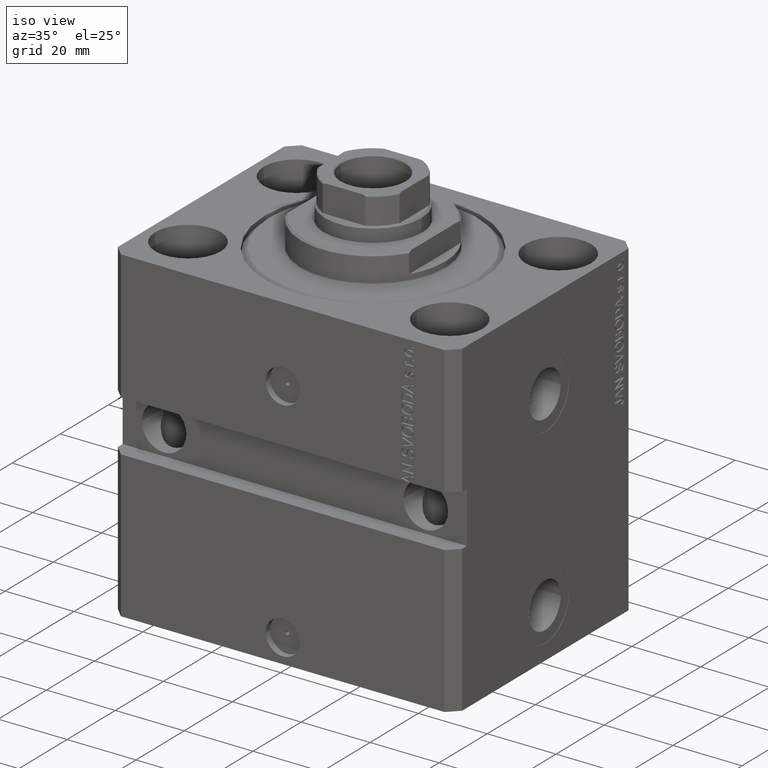
[diagram: clean part render]
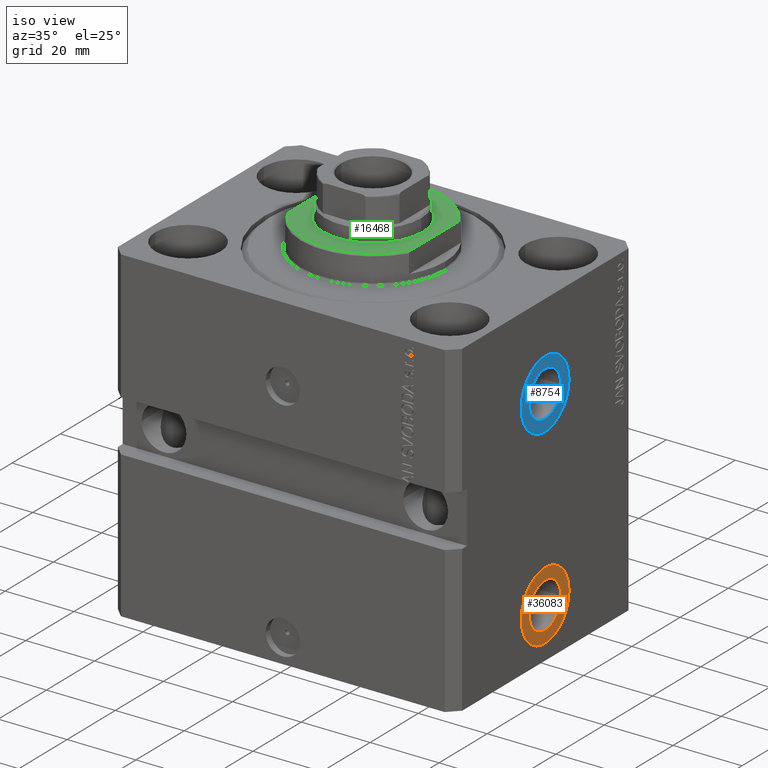
[diagram: same view with three faces highlighted in distinct colors, each labeled with its STEP entity id]
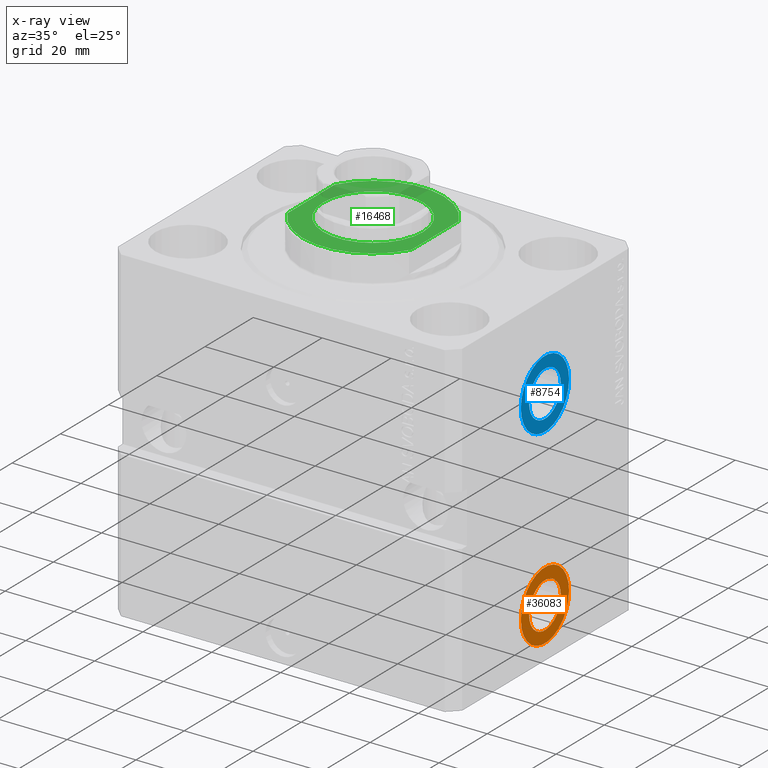
[diagram: x-ray of the same camera — body ghosted, the three highlighted faces saturated]
A machine part, iso view with three faces highlighted in distinct colors.
The next image is the same camera in x-ray (body ghosted, the three faces saturated) — at least one of them is partly hidden behind the body in this view.
Their STEP definitions:

[orange] entity #36083 — the highlighted planar face has unit normal (1, -0, 0).
#380 = CARTESIAN_POINT ( 'NONE',  ( 49.90000000000034674, 6.579999999999617266, -80.50000000000000000 ) ) ;
#831 = DIRECTION ( 'NONE',  ( 1.370906090437600963E-14, 1.000000000000000000, 0.000000000000000000 ) ) ;
#3989 = CIRCLE ( 'NONE', #30974, 6.579999999999987637 ) ;
#4279 = VERTEX_POINT ( 'NONE', #380 ) ;
#4634 = DIRECTION ( 'NONE',  ( 1.370906090437600963E-14, 1.000000000000000000, 0.000000000000000000 ) ) ;
#5069 = CARTESIAN_POINT ( 'NONE',  ( 49.90000000000038938, 9.999999999999623412, -80.50000000000000000 ) ) ;
#5506 = CIRCLE ( 'NONE', #10926, 9.999999999999994671 ) ;
#5557 = FACE_OUTER_BOUND ( 'NONE', #45470, .T. ) ;
#6057 = EDGE_CURVE ( 'NONE', #42734, #4279, #3989, .T. ) ;
#7972 = VERTEX_POINT ( 'NONE', #9671 ) ;
#8620 = EDGE_LOOP ( 'NONE', ( #37502, #46921 ) ) ;
#9671 = CARTESIAN_POINT ( 'NONE',  ( 49.90000000000012648, -10.00000000000036593, -80.50000000000000000 ) ) ;
#10926 = AXIS2_PLACEMENT_3D ( 'NONE', #35676, #31582, #28206 ) ;
#12236 = CIRCLE ( 'NONE', #33053, 6.579999999999987637 ) ;
#12384 = CIRCLE ( 'NONE', #45502, 9.999999999999994671 ) ;
#13167 = CARTESIAN_POINT ( 'NONE',  ( 49.90000000000025437, -3.707512124632282308E-13, -80.50000000000000000 ) ) ;
#17111 = PLANE ( 'NONE',  #40040 ) ;
#17595 = DIRECTION ( 'NONE',  ( 1.334402673828349134E-14, 1.000000000000000000, 0.000000000000000000 ) ) ;
#20266 = DIRECTION ( 'NONE',  ( 1.000000000000000000, -1.334402673828349134E-14, 0.000000000000000000 ) ) ;
#20693 = ORIENTED_EDGE ( 'NONE', *, *, #44130, .T. ) ;
#24130 = CARTESIAN_POINT ( 'NONE',  ( 49.90000000000025437, -3.707512124632282308E-13, -80.50000000000000000 ) ) ;
#28206 = DIRECTION ( 'NONE',  ( 1.318389841742374023E-14, 1.000000000000000000, 0.000000000000000000 ) ) ;
#28220 = FACE_BOUND ( 'NONE', #8620, .T. ) ;
#29285 = EDGE_CURVE ( 'NONE', #4279, #42734, #12236, .T. ) ;
#29778 = DIRECTION ( 'NONE',  ( 1.000000000000000000, -1.334402673828349134E-14, 0.000000000000000000 ) ) ;
#30974 = AXIS2_PLACEMENT_3D ( 'NONE', #41295, #37678, #4634 ) ;
#31582 = DIRECTION ( 'NONE',  ( 1.000000000000000000, -1.334402673828349134E-14, 0.000000000000000000 ) ) ;
#32782 = VERTEX_POINT ( 'NONE', #5069 ) ;
#33053 = AXIS2_PLACEMENT_3D ( 'NONE', #37006, #29778, #831 ) ;
#35676 = CARTESIAN_POINT ( 'NONE',  ( 49.90000000000025437, -3.707512124632282308E-13, -80.50000000000000000 ) ) ;
#36083 = ADVANCED_FACE ( 'NONE', ( #28220, #5557 ), #17111, .T. ) ;
#36131 = CARTESIAN_POINT ( 'NONE',  ( 49.90000000000016911, -6.580000000000357119, -80.50000000000000000 ) ) ;
#37006 = CARTESIAN_POINT ( 'NONE',  ( 49.90000000000025437, -3.707512124632282308E-13, -80.50000000000000000 ) ) ;
#37502 = ORIENTED_EDGE ( 'NONE', *, *, #29285, .F. ) ;
#37678 = DIRECTION ( 'NONE',  ( 1.000000000000000000, -1.334402673828349134E-14, 0.000000000000000000 ) ) ;
#38744 = DIRECTION ( 'NONE',  ( 1.000000000000000000, -1.334402673828349134E-14, 0.000000000000000000 ) ) ;
#39218 = ORIENTED_EDGE ( 'NONE', *, *, #42971, .T. ) ;
#40040 = AXIS2_PLACEMENT_3D ( 'NONE', #24130, #20266, #17595 ) ;
#41295 = CARTESIAN_POINT ( 'NONE',  ( 49.90000000000025437, -3.707512124632282308E-13, -80.50000000000000000 ) ) ;
#42734 = VERTEX_POINT ( 'NONE', #36131 ) ;
#42971 = EDGE_CURVE ( 'NONE', #7972, #32782, #12384, .T. ) ;
#43301 = DIRECTION ( 'NONE',  ( 1.318389841742374023E-14, 1.000000000000000000, 0.000000000000000000 ) ) ;
#44130 = EDGE_CURVE ( 'NONE', #32782, #7972, #5506, .T. ) ;
#45470 = EDGE_LOOP ( 'NONE', ( #20693, #39218 ) ) ;
#45502 = AXIS2_PLACEMENT_3D ( 'NONE', #13167, #38744, #43301 ) ;
#46921 = ORIENTED_EDGE ( 'NONE', *, *, #6057, .F. ) ;

[blue] entity #8754 — the highlighted planar face has unit normal (1, -0, 0).
#1078 = AXIS2_PLACEMENT_3D ( 'NONE', #34342, #27342, #23008 ) ;
#3493 = ORIENTED_EDGE ( 'NONE', *, *, #36710, .F. ) ;
#3631 = CARTESIAN_POINT ( 'NONE',  ( 49.90000000000025437, -3.707512124632282308E-13, -25.00000000000000000 ) ) ;
#4651 = CARTESIAN_POINT ( 'NONE',  ( 49.90000000000025437, -3.707512124632282308E-13, -25.00000000000000000 ) ) ;
#5853 = EDGE_CURVE ( 'NONE', #36438, #37641, #31723, .T. ) ;
#6191 = AXIS2_PLACEMENT_3D ( 'NONE', #8760, #23485, #17661 ) ;
#8265 = DIRECTION ( 'NONE',  ( 1.370906090437597808E-14, 1.000000000000000000, 0.000000000000000000 ) ) ;
#8754 = ADVANCED_FACE ( 'NONE', ( #11333, #25827 ), #40531, .T. ) ;
#8760 = CARTESIAN_POINT ( 'NONE',  ( 49.90000000000025437, -3.707512124632282308E-13, -25.00000000000000000 ) ) ;
#9810 = VERTEX_POINT ( 'NONE', #35204 ) ;
#10483 = EDGE_CURVE ( 'NONE', #37641, #36438, #21883, .T. ) ;
#11333 = FACE_BOUND ( 'NONE', #20430, .T. ) ;
#11882 = DIRECTION ( 'NONE',  ( 1.000000000000000000, -1.334402673828349134E-14, 0.000000000000000000 ) ) ;
#15011 = CARTESIAN_POINT ( 'NONE',  ( 49.90000000000025437, -3.707512124632282308E-13, -25.00000000000000000 ) ) ;
#17661 = DIRECTION ( 'NONE',  ( 1.370906090437597808E-14, 1.000000000000000000, 0.000000000000000000 ) ) ;
#17759 = ORIENTED_EDGE ( 'NONE', *, *, #22057, .F. ) ;
#20430 = EDGE_LOOP ( 'NONE', ( #17759, #3493 ) ) ;
#20924 = CARTESIAN_POINT ( 'NONE',  ( 49.90000000000012648, -10.00000000000037126, -25.00000000000000000 ) ) ;
#21883 = CIRCLE ( 'NONE', #1078, 10.00000000000000000 ) ;
#22057 = EDGE_CURVE ( 'NONE', #9810, #23047, #22903, .T. ) ;
#22517 = CARTESIAN_POINT ( 'NONE',  ( 49.90000000000016911, -6.580000000000372218, -25.00000000000000000 ) ) ;
#22694 = DIRECTION ( 'NONE',  ( 1.334402673828349134E-14, 1.000000000000000000, 0.000000000000000000 ) ) ;
#22903 = CIRCLE ( 'NONE', #25208, 6.580000000000002736 ) ;
#23008 = DIRECTION ( 'NONE',  ( 1.318389841742373392E-14, 1.000000000000000000, 0.000000000000000000 ) ) ;
#23047 = VERTEX_POINT ( 'NONE', #22517 ) ;
#23485 = DIRECTION ( 'NONE',  ( 1.000000000000000000, -1.334402673828349134E-14, 0.000000000000000000 ) ) ;
#25208 = AXIS2_PLACEMENT_3D ( 'NONE', #4651, #11882, #8265 ) ;
#25827 = FACE_OUTER_BOUND ( 'NONE', #26958, .T. ) ;
#26958 = EDGE_LOOP ( 'NONE', ( #41835, #44971 ) ) ;
#27342 = DIRECTION ( 'NONE',  ( 1.000000000000000000, -1.334402673828349134E-14, 0.000000000000000000 ) ) ;
#29251 = DIRECTION ( 'NONE',  ( 1.000000000000000000, -1.334402673828349134E-14, 0.000000000000000000 ) ) ;
#31723 = CIRCLE ( 'NONE', #40224, 10.00000000000000000 ) ;
#33164 = CARTESIAN_POINT ( 'NONE',  ( 49.90000000000038938, 9.999999999999628741, -25.00000000000000000 ) ) ;
#34342 = CARTESIAN_POINT ( 'NONE',  ( 49.90000000000025437, -3.707512124632282308E-13, -25.00000000000000000 ) ) ;
#35204 = CARTESIAN_POINT ( 'NONE',  ( 49.90000000000034674, 6.579999999999632365, -25.00000000000000000 ) ) ;
#36438 = VERTEX_POINT ( 'NONE', #20924 ) ;
#36710 = EDGE_CURVE ( 'NONE', #23047, #9810, #43126, .T. ) ;
#37641 = VERTEX_POINT ( 'NONE', #33164 ) ;
#40224 = AXIS2_PLACEMENT_3D ( 'NONE', #15011, #29251, #43712 ) ;
#40531 = PLANE ( 'NONE',  #41081 ) ;
#41081 = AXIS2_PLACEMENT_3D ( 'NONE', #3631, #41254, #22694 ) ;
#41254 = DIRECTION ( 'NONE',  ( 1.000000000000000000, -1.334402673828349134E-14, 0.000000000000000000 ) ) ;
#41835 = ORIENTED_EDGE ( 'NONE', *, *, #10483, .T. ) ;
#43126 = CIRCLE ( 'NONE', #6191, 6.580000000000002736 ) ;
#43712 = DIRECTION ( 'NONE',  ( 1.318389841742373392E-14, 1.000000000000000000, 0.000000000000000000 ) ) ;
#44971 = ORIENTED_EDGE ( 'NONE', *, *, #5853, .T. ) ;

[green] entity #16468 — the highlighted planar face has unit normal (0, 0, 1).
#653 = DIRECTION ( 'NONE',  ( -1.000000000000000000, 0.000000000000000000, 0.000000000000000000 ) ) ;
#3107 = CARTESIAN_POINT ( 'NONE',  ( -18.00000000000000000, -41.24318125460256113, -8.000000000000000000 ) ) ;
#4027 = CARTESIAN_POINT ( 'NONE',  ( 0.000000000000000000, 0.000000000000000000, -8.000000000000000000 ) ) ;
#4094 = LINE ( 'NONE', #18800, #11839 ) ;
#4207 = EDGE_CURVE ( 'NONE', #31352, #19945, #18562, .T. ) ;
#5168 = CARTESIAN_POINT ( 'NONE',  ( 0.000000000000000000, 0.000000000000000000, -8.000000000000000000 ) ) ;
#5991 = VECTOR ( 'NONE', #39046, 1000.000000000000000 ) ;
#6466 = CARTESIAN_POINT ( 'NONE',  ( -18.00000000000000000, -9.810708435174332109, -8.000000000000000000 ) ) ;
#8313 = EDGE_CURVE ( 'NONE', #39645, #16830, #19502, .T. ) ;
#8603 = FACE_OUTER_BOUND ( 'NONE', #13863, .T. ) ;
#9274 = CARTESIAN_POINT ( 'NONE',  ( -14.49999999999999822, 0.000000000000000000, -8.000000000000000000 ) ) ;
#9325 = AXIS2_PLACEMENT_3D ( 'NONE', #28390, #9572, #38526 ) ;
#9484 = DIRECTION ( 'NONE',  ( -1.000000000000000000, 0.000000000000000000, 0.000000000000000000 ) ) ;
#9572 = DIRECTION ( 'NONE',  ( 0.000000000000000000, 0.000000000000000000, -1.000000000000000000 ) ) ;
#11154 = VERTEX_POINT ( 'NONE', #38779 ) ;
#11442 = CARTESIAN_POINT ( 'NONE',  ( 18.00000000000000000, 9.810708435174332109, -8.000000000000000000 ) ) ;
#11498 = FACE_BOUND ( 'NONE', #32472, .T. ) ;
#11839 = VECTOR ( 'NONE', #15184, 1000.000000000000000 ) ;
#12080 = ORIENTED_EDGE ( 'NONE', *, *, #8313, .T. ) ;
#12320 = CARTESIAN_POINT ( 'NONE',  ( -18.00000000000000000, 9.810708435174332109, -8.000000000000000000 ) ) ;
#12334 = ORIENTED_EDGE ( 'NONE', *, *, #30767, .T. ) ;
#13254 = EDGE_CURVE ( 'NONE', #16830, #31352, #4094, .T. ) ;
#13338 = ORIENTED_EDGE ( 'NONE', *, *, #22593, .F. ) ;
#13592 = CIRCLE ( 'NONE', #35151, 14.49999999999999822 ) ;
#13863 = EDGE_LOOP ( 'NONE', ( #12080, #20986, #23944, #13338 ) ) ;
#15184 = DIRECTION ( 'NONE',  ( 0.000000000000000000, -1.000000000000000000, -0.000000000000000000 ) ) ;
#15367 = DIRECTION ( 'NONE',  ( 0.000000000000000000, 0.000000000000000000, -1.000000000000000000 ) ) ;
#16468 = ADVANCED_FACE ( 'NONE', ( #11498, #8603 ), #44549, .T. ) ;
#16830 = VERTEX_POINT ( 'NONE', #11442 ) ;
#16956 = ORIENTED_EDGE ( 'NONE', *, *, #20121, .T. ) ;
#18562 = CIRCLE ( 'NONE', #9325, 20.50000000000001776 ) ;
#18800 = CARTESIAN_POINT ( 'NONE',  ( 18.00000000000000000, -41.24318125460256113, -8.000000000000000000 ) ) ;
#19502 = CIRCLE ( 'NONE', #46444, 20.50000000000001776 ) ;
#19945 = VERTEX_POINT ( 'NONE', #6466 ) ;
#20121 = EDGE_CURVE ( 'NONE', #11154, #35352, #13592, .T. ) ;
#20986 = ORIENTED_EDGE ( 'NONE', *, *, #13254, .T. ) ;
#22593 = EDGE_CURVE ( 'NONE', #39645, #19945, #28926, .T. ) ;
#23944 = ORIENTED_EDGE ( 'NONE', *, *, #4207, .T. ) ;
#28390 = CARTESIAN_POINT ( 'NONE',  ( 0.000000000000000000, 0.000000000000000000, -8.000000000000000000 ) ) ;
#28852 = CARTESIAN_POINT ( 'NONE',  ( 18.00000000000000000, -9.810708435174332109, -8.000000000000000000 ) ) ;
#28926 = LINE ( 'NONE', #3107, #5991 ) ;
#30767 = EDGE_CURVE ( 'NONE', #35352, #11154, #35254, .T. ) ;
#31352 = VERTEX_POINT ( 'NONE', #28852 ) ;
#32472 = EDGE_LOOP ( 'NONE', ( #12334, #16956 ) ) ;
#33362 = DIRECTION ( 'NONE',  ( -1.000000000000000000, 0.000000000000000000, 0.000000000000000000 ) ) ;
#35151 = AXIS2_PLACEMENT_3D ( 'NONE', #4027, #45028, #653 ) ;
#35254 = CIRCLE ( 'NONE', #36767, 14.49999999999999822 ) ;
#35352 = VERTEX_POINT ( 'NONE', #9274 ) ;
#36767 = AXIS2_PLACEMENT_3D ( 'NONE', #5168, #41823, #9484 ) ;
#37690 = DIRECTION ( 'NONE',  ( 0.000000000000000000, 0.000000000000000000, -1.000000000000000000 ) ) ;
#38526 = DIRECTION ( 'NONE',  ( -1.000000000000000000, 0.000000000000000000, 0.000000000000000000 ) ) ;
#38779 = CARTESIAN_POINT ( 'NONE',  ( 14.49999999999999822, 1.775737858763662015E-15, -8.000000000000000000 ) ) ;
#39046 = DIRECTION ( 'NONE',  ( -0.000000000000000000, -1.000000000000000000, -0.000000000000000000 ) ) ;
#39645 = VERTEX_POINT ( 'NONE', #12320 ) ;
#39659 = AXIS2_PLACEMENT_3D ( 'NONE', #44788, #15367, #45501 ) ;
#41823 = DIRECTION ( 'NONE',  ( -0.000000000000000000, -0.000000000000000000, 1.000000000000000000 ) ) ;
#44549 = PLANE ( 'NONE',  #39659 ) ;
#44677 = CARTESIAN_POINT ( 'NONE',  ( 0.000000000000000000, 0.000000000000000000, -8.000000000000000000 ) ) ;
#44788 = CARTESIAN_POINT ( 'NONE',  ( 0.000000000000000000, 0.000000000000000000, -8.000000000000000000 ) ) ;
#45028 = DIRECTION ( 'NONE',  ( -0.000000000000000000, -0.000000000000000000, 1.000000000000000000 ) ) ;
#45501 = DIRECTION ( 'NONE',  ( -1.000000000000000000, 0.000000000000000000, -0.000000000000000000 ) ) ;
#46444 = AXIS2_PLACEMENT_3D ( 'NONE', #44677, #37690, #33362 ) ;